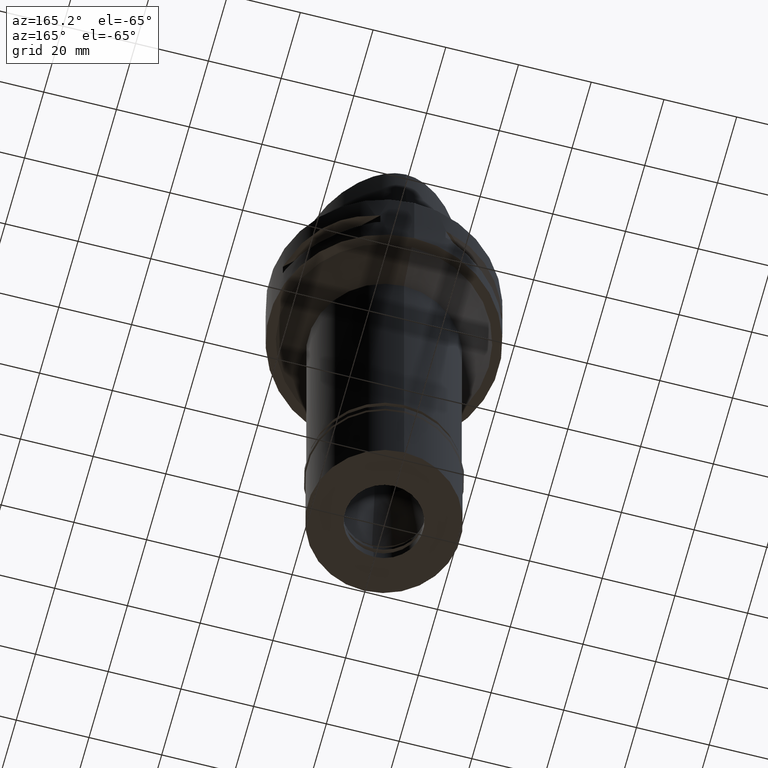
[diagram: clean part render]
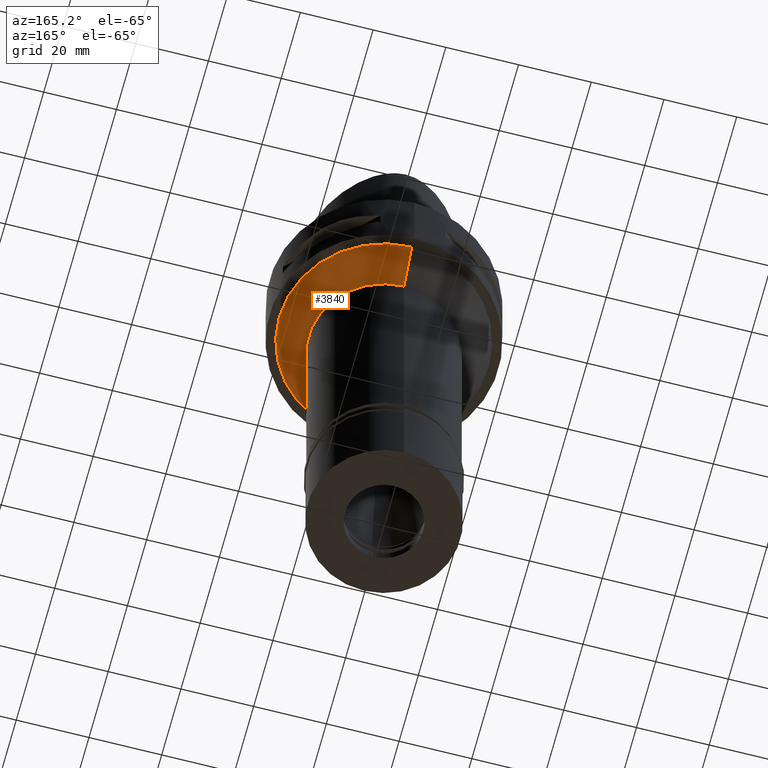
[diagram: same view with one face highlighted and labeled with its STEP entity id]
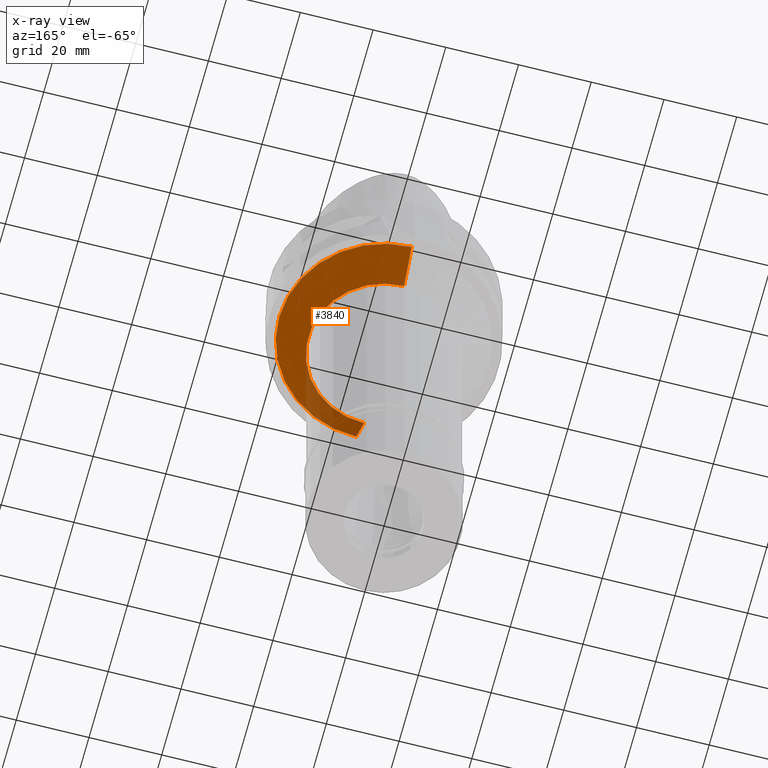
[diagram: x-ray of the same camera — body ghosted, the highlighted face saturated]
A machine part, auxiliary view. The second image highlights one B-rep face of the part: STEP entity #3840.
The next image is the same camera in x-ray: the body ghosted, the highlighted face saturated — about 14% of this face is hidden behind the body in this view.
In plain terms, the highlighted conical surface has half-angle 45 deg.
Its self-contained STEP definition (entity closure, byte-faithful):
#117 = VERTEX_POINT ( 'NONE', #2139 ) ;
#208 = DIRECTION ( 'NONE',  ( 0.0000000000000000000, 0.7071067811865474617, -0.7071067811865474617 ) ) ;
#281 = CARTESIAN_POINT ( 'NONE',  ( 0.0000000000000000000, 28.80000000000000071, -22.00000000000000000 ) ) ;
#314 = DIRECTION ( 'NONE',  ( 0.0000000000000000000, 1.000000000000000000, 0.0000000000000000000 ) ) ;
#364 = ORIENTED_EDGE ( 'NONE', *, *, #3278, .T. ) ;
#382 = DIRECTION ( 'NONE',  ( 0.0000000000000000000, -0.7071067811865474617, -0.7071067811865474617 ) ) ;
#470 = EDGE_CURVE ( 'NONE', #4355, #117, #2104, .T. ) ;
#553 = LINE ( 'NONE', #577, #1284 ) ;
#577 = CARTESIAN_POINT ( 'NONE',  ( 0.0000000000000000000, -28.80000000000000071, -22.00000000000000000 ) ) ;
#924 = AXIS2_PLACEMENT_3D ( 'NONE', #2753, #2771, #2481 ) ;
#1045 = CARTESIAN_POINT ( 'NONE',  ( 0.0000000000000000000, 0.0000000000000000000, -30.00000000000000000 ) ) ;
#1093 = CARTESIAN_POINT ( 'NONE',  ( 0.0000000000000000000, -28.80000000000000071, -22.00000000000000000 ) ) ;
#1125 = VECTOR ( 'NONE', #382, 1000.000000000000114 ) ;
#1205 = AXIS2_PLACEMENT_3D ( 'NONE', #1045, #4496, #314 ) ;
#1284 = VECTOR ( 'NONE', #208, 1000.000000000000114 ) ;
#1399 = DIRECTION ( 'NONE',  ( 0.0000000000000000000, 1.000000000000000000, 0.0000000000000000000 ) ) ;
#1631 = EDGE_LOOP ( 'NONE', ( #4405, #364, #1719, #3225 ) ) ;
#1719 = ORIENTED_EDGE ( 'NONE', *, *, #470, .F. ) ;
#2083 = VERTEX_POINT ( 'NONE', #1093 ) ;
#2104 = CIRCLE ( 'NONE', #1205, 20.80000000000000071 ) ;
#2139 = CARTESIAN_POINT ( 'NONE',  ( 0.0000000000000000000, -20.80000000000000071, -30.00000000000000000 ) ) ;
#2343 = CONICAL_SURFACE ( 'NONE', #2982, 24.80000000000000071, 0.7853981633972997312 ) ;
#2481 = DIRECTION ( 'NONE',  ( 0.0000000000000000000, 1.000000000000000000, 0.0000000000000000000 ) ) ;
#2698 = FACE_OUTER_BOUND ( 'NONE', #1631, .T. ) ;
#2753 = CARTESIAN_POINT ( 'NONE',  ( 0.0000000000000000000, 0.0000000000000000000, -22.00000000000000000 ) ) ;
#2771 = DIRECTION ( 'NONE',  ( 0.0000000000000000000, 0.0000000000000000000, -1.000000000000000000 ) ) ;
#2982 = AXIS2_PLACEMENT_3D ( 'NONE', #4207, #3849, #1399 ) ;
#2996 = LINE ( 'NONE', #281, #1125 ) ;
#3061 = VERTEX_POINT ( 'NONE', #3646 ) ;
#3101 = CIRCLE ( 'NONE', #924, 28.80000000000000071 ) ;
#3225 = ORIENTED_EDGE ( 'NONE', *, *, #3312, .F. ) ;
#3278 = EDGE_CURVE ( 'NONE', #2083, #117, #553, .T. ) ;
#3312 = EDGE_CURVE ( 'NONE', #3061, #4355, #2996, .T. ) ;
#3646 = CARTESIAN_POINT ( 'NONE',  ( 0.0000000000000000000, 28.80000000000000071, -22.00000000000000000 ) ) ;
#3840 = ADVANCED_FACE ( 'NONE', ( #2698 ), #2343, .T. ) ;
#3849 = DIRECTION ( 'NONE',  ( 0.0000000000000000000, 0.0000000000000000000, 1.000000000000000000 ) ) ;
#4207 = CARTESIAN_POINT ( 'NONE',  ( 0.0000000000000000000, 0.0000000000000000000, -26.00000000000000000 ) ) ;
#4355 = VERTEX_POINT ( 'NONE', #4879 ) ;
#4405 = ORIENTED_EDGE ( 'NONE', *, *, #4699, .T. ) ;
#4496 = DIRECTION ( 'NONE',  ( 0.0000000000000000000, 0.0000000000000000000, -1.000000000000000000 ) ) ;
#4699 = EDGE_CURVE ( 'NONE', #3061, #2083, #3101, .T. ) ;
#4879 = CARTESIAN_POINT ( 'NONE',  ( 0.0000000000000000000, 20.80000000000000071, -30.00000000000000000 ) ) ;